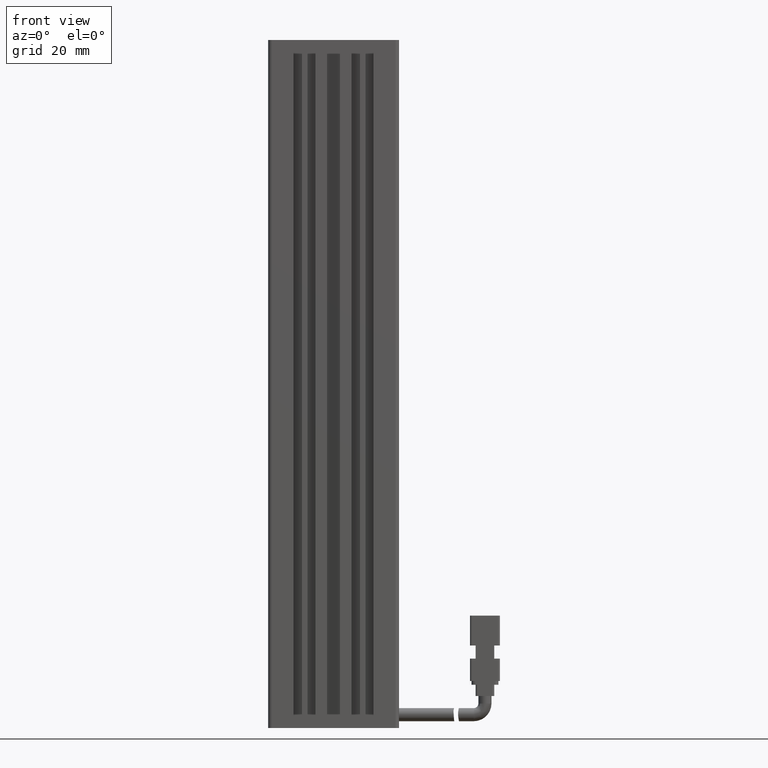
[diagram: clean part render]
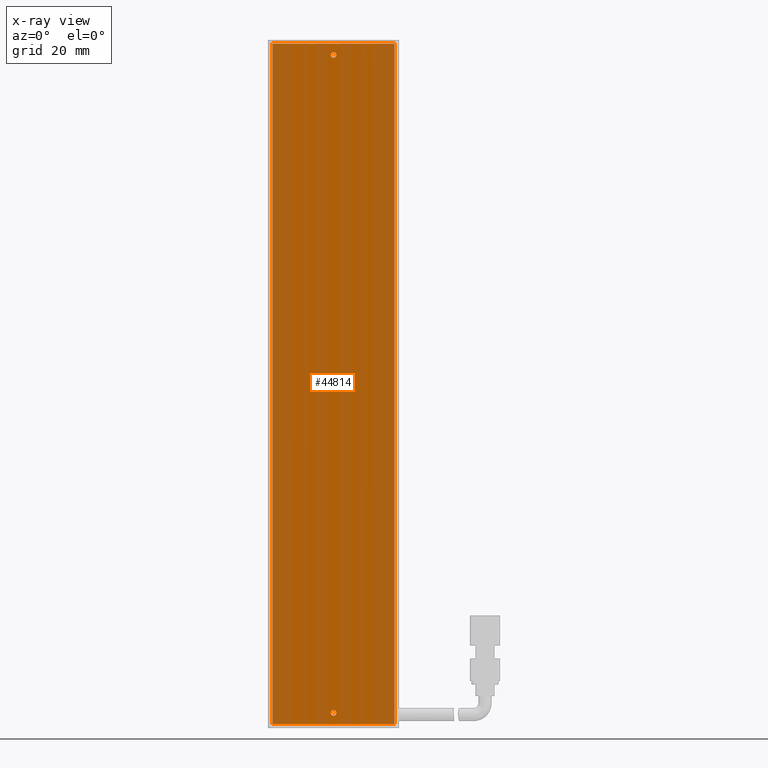
[diagram: x-ray — body ghosted, one internal face saturated and labeled with its STEP entity id]
A machine part, front view, then the same camera in x-ray: the body is ghosted and one INTERNAL B-rep face — a face not visible from any outside direction — is saturated and labeled: STEP entity #44814.
In plain terms, the highlighted planar face has unit normal (0, 1, 0).
Its self-contained STEP definition (entity closure, byte-faithful):
#237 = CARTESIAN_POINT ( 'NONE',  ( 57.27537974683544100, 32.09073232304837800, -23.99999999999996100 ) ) ;
#693 = CARTESIAN_POINT ( 'NONE',  ( 40.92537974683543900, 32.09073232304837800, -203.7499999999999700 ) ) ;
#1341 = AXIS2_PLACEMENT_3D ( 'NONE', #8955, #15842, #51636 ) ;
#1506 = EDGE_CURVE ( 'NONE', #45024, #63482, #33283, .T. ) ;
#2777 = DIRECTION ( 'NONE',  ( -1.000000000000000000, -0.0000000000000000000, -1.387778780781445400E-016 ) ) ;
#3671 = PLANE ( 'NONE',  #1341 ) ;
#3900 = AXIS2_PLACEMENT_3D ( 'NONE', #29661, #40607, #40861 ) ;
#5038 = CARTESIAN_POINT ( 'NONE',  ( 40.92537974683542500, 32.09073232304837800, -27.74999999999996400 ) ) ;
#5367 = VERTEX_POINT ( 'NONE', #21774 ) ;
#5509 = EDGE_CURVE ( 'NONE', #67308, #55512, #35941, .T. ) ;
#6504 = ORIENTED_EDGE ( 'NONE', *, *, #1506, .F. ) ;
#7998 = DIRECTION ( 'NONE',  ( 0.0000000000000000000, 0.0000000000000000000, 1.000000000000000000 ) ) ;
#8955 = CARTESIAN_POINT ( 'NONE',  ( 57.27537974683544100, 32.09073232304837800, -23.99999999999996100 ) ) ;
#9319 = CARTESIAN_POINT ( 'NONE',  ( 24.57537974683542700, 32.09073232304837800, -23.99999999999996400 ) ) ;
#11578 = EDGE_CURVE ( 'NONE', #76411, #5367, #53310, .T. ) ;
#11786 = ORIENTED_EDGE ( 'NONE', *, *, #5509, .F. ) ;
#11823 = AXIS2_PLACEMENT_3D ( 'NONE', #33340, #32816, #7998 ) ;
#12929 = ORIENTED_EDGE ( 'NONE', *, *, #63328, .F. ) ;
#14258 = FACE_OUTER_BOUND ( 'NONE', #37599, .T. ) ;
#15842 = DIRECTION ( 'NONE',  ( 0.0000000000000000000, 1.000000000000000000, 0.0000000000000000000 ) ) ;
#15883 = AXIS2_PLACEMENT_3D ( 'NONE', #21373, #32645, #57905 ) ;
#16924 = DIRECTION ( 'NONE',  ( -0.0000000000000000000, -1.000000000000000000, -0.0000000000000000000 ) ) ;
#16953 = EDGE_CURVE ( 'NONE', #23138, #45024, #77856, .T. ) ;
#17615 = CIRCLE ( 'NONE', #3900, 0.7500000000000006700 ) ;
#17972 = CARTESIAN_POINT ( 'NONE',  ( 40.92537974683543900, 32.09073232304837800, -202.9999999999999700 ) ) ;
#21373 = CARTESIAN_POINT ( 'NONE',  ( 40.92537974683542500, 32.09073232304837800, -26.99999999999996400 ) ) ;
#21774 = CARTESIAN_POINT ( 'NONE',  ( 40.92537974683542500, 32.09073232304837800, -26.24999999999996400 ) ) ;
#23138 = VERTEX_POINT ( 'NONE', #44596 ) ;
#24717 = LINE ( 'NONE', #55346, #50513 ) ;
#25290 = ORIENTED_EDGE ( 'NONE', *, *, #11578, .F. ) ;
#25562 = VECTOR ( 'NONE', #29635, 1000.000000000000000 ) ;
#28587 = FACE_BOUND ( 'NONE', #53079, .T. ) ;
#29001 = DIRECTION ( 'NONE',  ( 0.0000000000000000000, 0.0000000000000000000, 1.000000000000000000 ) ) ;
#29635 = DIRECTION ( 'NONE',  ( -1.387778780781445400E-016, 0.0000000000000000000, 1.000000000000000000 ) ) ;
#29661 = CARTESIAN_POINT ( 'NONE',  ( 40.92537974683543900, 32.09073232304837800, -202.9999999999999700 ) ) ;
#30872 = DIRECTION ( 'NONE',  ( 1.387778780781445400E-016, -0.0000000000000000000, -1.000000000000000000 ) ) ;
#31022 = ORIENTED_EDGE ( 'NONE', *, *, #16953, .F. ) ;
#32645 = DIRECTION ( 'NONE',  ( -0.0000000000000000000, -1.000000000000000000, -0.0000000000000000000 ) ) ;
#32698 = EDGE_CURVE ( 'NONE', #75067, #23138, #24717, .T. ) ;
#32816 = DIRECTION ( 'NONE',  ( -0.0000000000000000000, -1.000000000000000000, -0.0000000000000000000 ) ) ;
#33283 = LINE ( 'NONE', #66353, #25562 ) ;
#33340 = CARTESIAN_POINT ( 'NONE',  ( 40.92537974683542500, 32.09073232304837800, -26.99999999999996400 ) ) ;
#35530 = CARTESIAN_POINT ( 'NONE',  ( 40.92537974683543900, 32.09073232304837800, -202.2499999999999700 ) ) ;
#35941 = CIRCLE ( 'NONE', #48910, 0.7500000000000006700 ) ;
#36331 = DIRECTION ( 'NONE',  ( 1.000000000000000000, 0.0000000000000000000, 1.387778780781445400E-016 ) ) ;
#36731 = EDGE_LOOP ( 'NONE', ( #12929, #25290 ) ) ;
#37107 = EDGE_CURVE ( 'NONE', #63482, #75067, #42565, .T. ) ;
#37599 = EDGE_LOOP ( 'NONE', ( #6504, #31022, #77574, #40563 ) ) ;
#39527 = ORIENTED_EDGE ( 'NONE', *, *, #65763, .F. ) ;
#40563 = ORIENTED_EDGE ( 'NONE', *, *, #37107, .F. ) ;
#40607 = DIRECTION ( 'NONE',  ( -0.0000000000000000000, -1.000000000000000000, -0.0000000000000000000 ) ) ;
#40861 = DIRECTION ( 'NONE',  ( 0.0000000000000000000, 0.0000000000000000000, 1.000000000000000000 ) ) ;
#41735 = CIRCLE ( 'NONE', #11823, 0.7500000000000006700 ) ;
#41894 = CARTESIAN_POINT ( 'NONE',  ( 57.27537974683544100, 32.09073232304837800, -23.99999999999996100 ) ) ;
#42565 = LINE ( 'NONE', #41894, #61568 ) ;
#44596 = CARTESIAN_POINT ( 'NONE',  ( 57.27537974683545500, 32.09073232304837800, -205.9999999999999700 ) ) ;
#44621 = VECTOR ( 'NONE', #2777, 1000.000000000000000 ) ;
#44814 = ADVANCED_FACE ( 'NONE', ( #14258, #46661, #28587 ), #3671, .F. ) ;
#45024 = VERTEX_POINT ( 'NONE', #77087 ) ;
#46661 = FACE_BOUND ( 'NONE', #36731, .T. ) ;
#48910 = AXIS2_PLACEMENT_3D ( 'NONE', #17972, #16924, #29001 ) ;
#50513 = VECTOR ( 'NONE', #30872, 1000.000000000000000 ) ;
#51636 = DIRECTION ( 'NONE',  ( -1.387778780781445400E-016, 0.0000000000000000000, 1.000000000000000000 ) ) ;
#53079 = EDGE_LOOP ( 'NONE', ( #11786, #39527 ) ) ;
#53310 = CIRCLE ( 'NONE', #15883, 0.7500000000000006700 ) ;
#55346 = CARTESIAN_POINT ( 'NONE',  ( 57.27537974683544100, 32.09073232304837800, -23.99999999999996100 ) ) ;
#55512 = VERTEX_POINT ( 'NONE', #693 ) ;
#57905 = DIRECTION ( 'NONE',  ( 0.0000000000000000000, 0.0000000000000000000, 1.000000000000000000 ) ) ;
#61568 = VECTOR ( 'NONE', #36331, 1000.000000000000000 ) ;
#63328 = EDGE_CURVE ( 'NONE', #5367, #76411, #41735, .T. ) ;
#63482 = VERTEX_POINT ( 'NONE', #9319 ) ;
#63708 = CARTESIAN_POINT ( 'NONE',  ( 57.27537974683546900, 32.09073232304837800, -205.9999999999999700 ) ) ;
#65763 = EDGE_CURVE ( 'NONE', #55512, #67308, #17615, .T. ) ;
#66353 = CARTESIAN_POINT ( 'NONE',  ( 24.57537974683541300, 32.09073232304837800, -23.99999999999996400 ) ) ;
#67308 = VERTEX_POINT ( 'NONE', #35530 ) ;
#75067 = VERTEX_POINT ( 'NONE', #237 ) ;
#76411 = VERTEX_POINT ( 'NONE', #5038 ) ;
#77087 = CARTESIAN_POINT ( 'NONE',  ( 24.57537974683543800, 32.09073232304837800, -205.9999999999999700 ) ) ;
#77574 = ORIENTED_EDGE ( 'NONE', *, *, #32698, .F. ) ;
#77856 = LINE ( 'NONE', #63708, #44621 ) ;